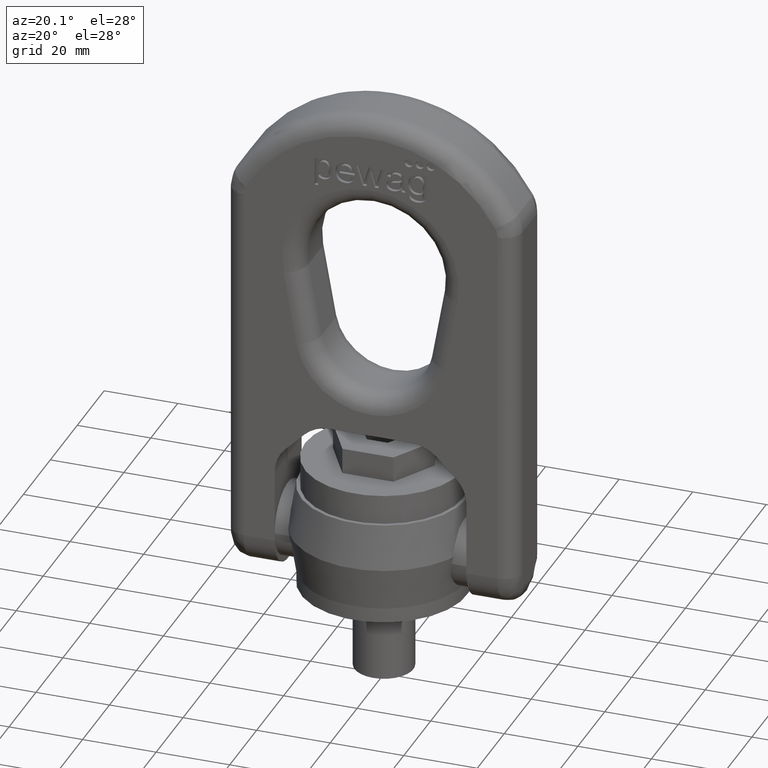
[diagram: clean part render]
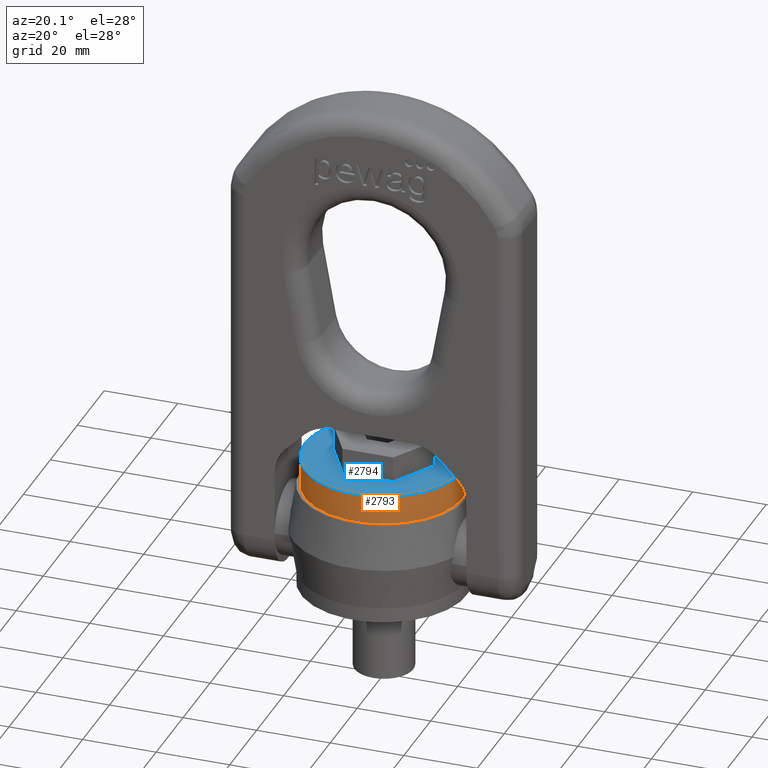
[diagram: same view with the hole feature highlighted: cylindrical wall and planar end face, labeled with their STEP entity ids]
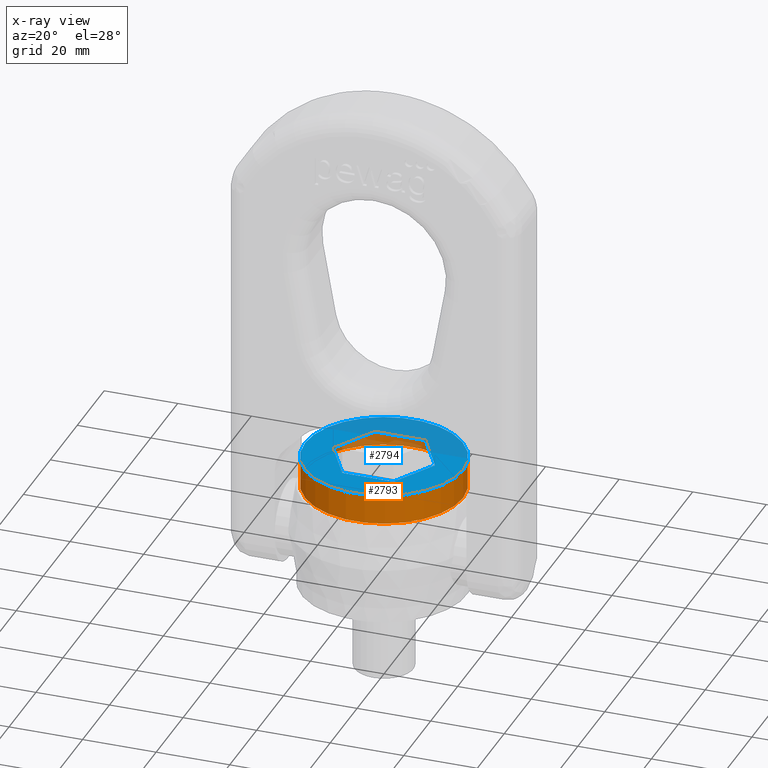
[diagram: x-ray of the same camera — body ghosted, the hole faces saturated]
A machine part, auxiliary view. The highlighted faces form one hole feature of diameter 43 mm: the cylindrical wall (entity #2793, orange) and its adjacent planar end face (entity #2794, blue) — they share a circular edge in the B-rep.
The next image is the same camera in x-ray (body ghosted, the hole faces saturated) — the bore reads through the body.
Wall:
#2793=ADVANCED_FACE('',(#3081,#3082),#3042,.T.);
#3042=CYLINDRICAL_SURFACE('',#5843,21.5);
#3081=FACE_BOUND('',#3150,.T.);
#3082=FACE_BOUND('',#3151,.T.);
#3150=EDGE_LOOP('',(#3446));
#3151=EDGE_LOOP('',(#3447));
#3446=ORIENTED_EDGE('',*,*,#5124,.T.);
#3447=ORIENTED_EDGE('',*,*,#5123,.F.);
#4703=VERTEX_POINT('',#6956);
#4704=VERTEX_POINT('',#6959);
#5123=EDGE_CURVE('',#4703,#4703,#5755,.T.);
#5124=EDGE_CURVE('',#4704,#4704,#5756,.T.);
#5755=CIRCLE('',#5840,21.5);
#5756=CIRCLE('',#5842,21.5);
#5840=AXIS2_PLACEMENT_3D('',#6955,#6090,#6091);
#5842=AXIS2_PLACEMENT_3D('',#6958,#6094,#6095);
#5843=AXIS2_PLACEMENT_3D('',#6960,#6096,#6097);
#6090=DIRECTION('',(0.,0.,-1.));
#6091=DIRECTION('',(-1.,0.,0.));
#6094=DIRECTION('',(0.,0.,-1.));
#6095=DIRECTION('',(-1.,0.,0.));
#6096=DIRECTION('',(0.,0.,-1.));
#6097=DIRECTION('',(-1.,0.,0.));
#6955=CARTESIAN_POINT('',(0.,0.,28.));
#6956=CARTESIAN_POINT('',(-21.5,0.,28.));
#6958=CARTESIAN_POINT('',(0.,0.,36.));
#6959=CARTESIAN_POINT('',(-21.5,0.,36.));
#6960=CARTESIAN_POINT('',(0.,0.,0.));
End face:
#1729=LINE('',#6961,#2037);
#1730=LINE('',#6964,#2038);
#1731=LINE('',#6966,#2039);
#1732=LINE('',#6968,#2040);
#1733=LINE('',#6970,#2041);
#1734=LINE('',#6972,#2042);
#2037=VECTOR('',#6098,1.);
#2038=VECTOR('',#6099,1.);
#2039=VECTOR('',#6100,1.);
#2040=VECTOR('',#6101,1.);
#2041=VECTOR('',#6102,1.);
#2042=VECTOR('',#6103,1.);
#2668=PLANE('',#5844);
#2794=ADVANCED_FACE('',(#3083,#3084),#2668,.T.);
#3083=FACE_BOUND('',#3152,.T.);
#3084=FACE_BOUND('',#3153,.T.);
#3152=EDGE_LOOP('',(#3448,#3449,#3450,#3451,#3452,#3453));
#3153=EDGE_LOOP('',(#3454));
#3448=ORIENTED_EDGE('',*,*,#5125,.F.);
#3449=ORIENTED_EDGE('',*,*,#5126,.F.);
#3450=ORIENTED_EDGE('',*,*,#5127,.F.);
#3451=ORIENTED_EDGE('',*,*,#5128,.F.);
#3452=ORIENTED_EDGE('',*,*,#5129,.F.);
#3453=ORIENTED_EDGE('',*,*,#5130,.F.);
#3454=ORIENTED_EDGE('',*,*,#5124,.F.);
#4704=VERTEX_POINT('',#6959);
#4705=VERTEX_POINT('',#6962);
#4706=VERTEX_POINT('',#6963);
#4707=VERTEX_POINT('',#6965);
#4708=VERTEX_POINT('',#6967);
#4709=VERTEX_POINT('',#6969);
#4710=VERTEX_POINT('',#6971);
#5124=EDGE_CURVE('',#4704,#4704,#5756,.T.);
#5125=EDGE_CURVE('',#4705,#4706,#1729,.T.);
#5126=EDGE_CURVE('',#4707,#4705,#1730,.T.);
#5127=EDGE_CURVE('',#4708,#4707,#1731,.T.);
#5128=EDGE_CURVE('',#4709,#4708,#1732,.T.);
#5129=EDGE_CURVE('',#4710,#4709,#1733,.T.);
#5130=EDGE_CURVE('',#4706,#4710,#1734,.T.);
#5756=CIRCLE('',#5842,21.5);
#5842=AXIS2_PLACEMENT_3D('',#6958,#6094,#6095);
#5844=AXIS2_PLACEMENT_3D('',#6973,#6104,#6105);
#6094=DIRECTION('',(0.,0.,-1.));
#6095=DIRECTION('',(-1.,0.,0.));
#6098=DIRECTION('',(0.5,-0.866025403784439,0.));
#6099=DIRECTION('',(-0.5,-0.866025403784439,0.));
#6100=DIRECTION('',(-1.,0.,0.));
#6101=DIRECTION('',(-0.5,0.866025403784439,0.));
#6102=DIRECTION('',(0.5,0.866025403784439,0.));
#6103=DIRECTION('',(1.,0.,0.));
#6104=DIRECTION('',(0.,0.,1.));
#6105=DIRECTION('',(1.,0.,0.));
#6958=CARTESIAN_POINT('',(0.,0.,36.));
#6959=CARTESIAN_POINT('',(-21.5,0.,36.));
#6961=CARTESIAN_POINT('',(-13.856406460551,0.,36.));
#6962=CARTESIAN_POINT('',(-13.856406460551,0.,36.));
#6963=CARTESIAN_POINT('',(-6.92820323027551,-12.,36.));
#6964=CARTESIAN_POINT('',(-6.92820323027551,12.,36.));
#6965=CARTESIAN_POINT('',(-6.92820323027551,12.,36.));
#6966=CARTESIAN_POINT('',(6.92820323027551,12.,36.));
#6967=CARTESIAN_POINT('',(6.92820323027551,12.,36.));
#6968=CARTESIAN_POINT('',(13.856406460551,0.,36.));
#6969=CARTESIAN_POINT('',(13.856406460551,1.73472347597681E-15,36.));
#6970=CARTESIAN_POINT('',(6.92820323027551,-12.,36.));
#6971=CARTESIAN_POINT('',(6.92820323027551,-12.,36.));
#6972=CARTESIAN_POINT('',(-6.92820323027551,-12.,36.));
#6973=CARTESIAN_POINT('',(0.,21.5,36.));